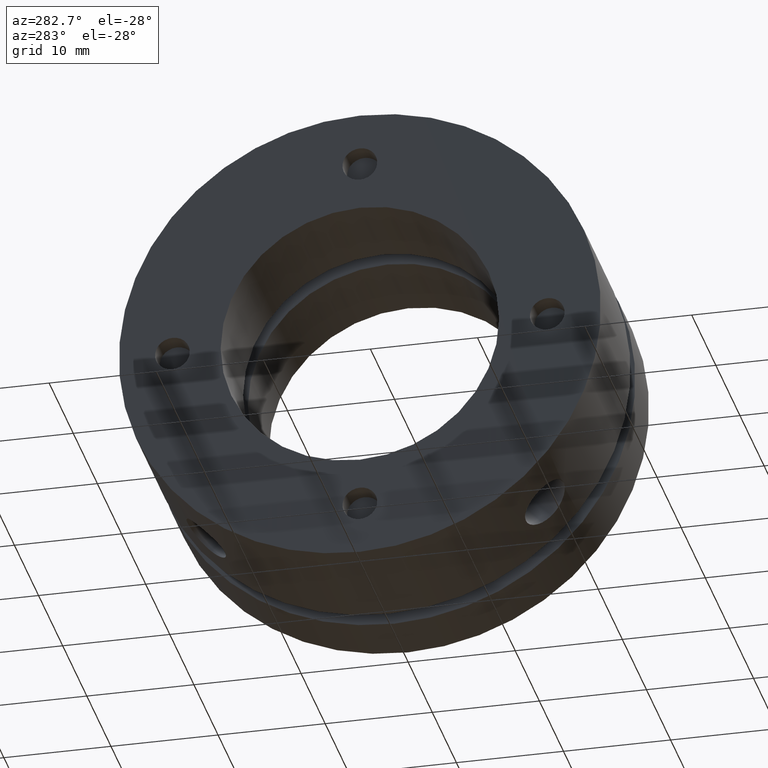
[diagram: clean part render]
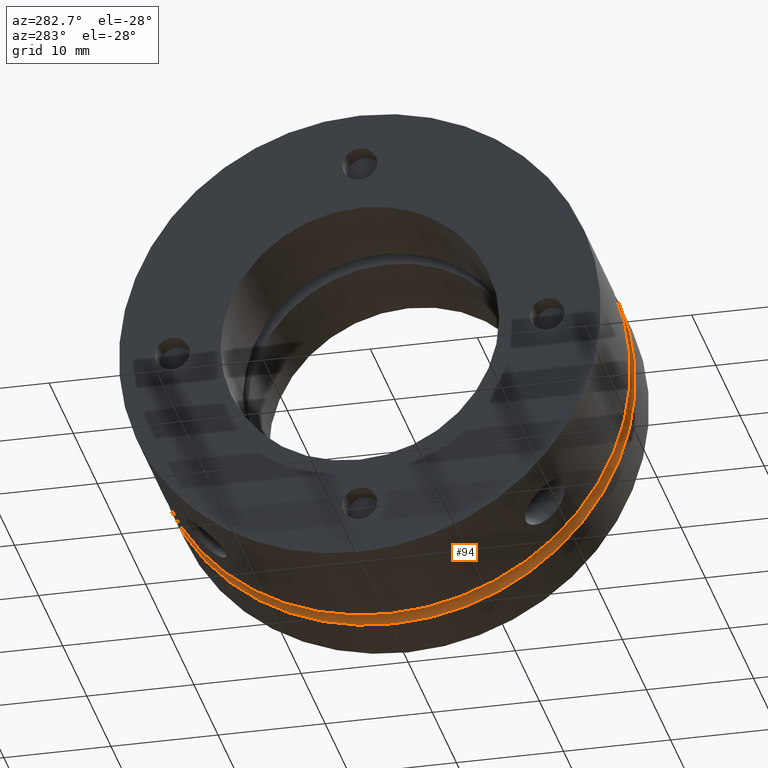
[diagram: same view with one face highlighted and labeled with its STEP entity id]
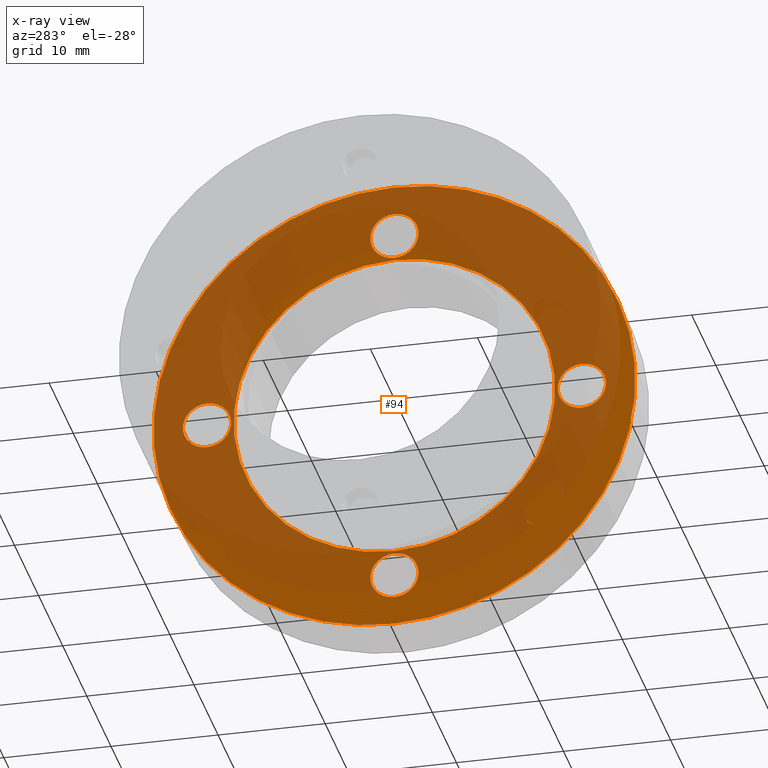
[diagram: x-ray of the same camera — body ghosted, the highlighted face saturated]
A machine part, auxiliary view. The second image highlights one B-rep face of the part: STEP entity #94.
The next image is the same camera in x-ray: the body ghosted, the highlighted face saturated — about 76% of this face is hidden behind the body in this view.
In plain terms, the highlighted planar face has unit normal (1, 0, 0).
Its self-contained STEP definition (entity closure, byte-faithful):
#94 = ADVANCED_FACE ( 'NONE', ( #2528, #2532, #2529, #2531, #2530, #2533 ), #400, .F. ) ;
#396 = DIRECTION ( 'NONE',  ( 1.000000000000000000, -0.0000000000000000000, 0.0000000000000000000 ) ) ;
#400 = PLANE ( 'NONE',  #982 ) ;
#401 = CARTESIAN_POINT ( 'NONE',  ( 14.29999999999999900, 18.75000000000000000, 0.0000000000000000000 ) ) ;
#403 = DIRECTION ( 'NONE',  ( 0.0000000000000000000, 0.0000000000000000000, -1.000000000000000000 ) ) ;
#510 = CARTESIAN_POINT ( 'NONE',  ( 14.29999999999999900, 1.836970198721029600E-015, -15.00000000000000000 ) ) ;
#524 = CARTESIAN_POINT ( 'NONE',  ( 14.29999999999999900, 0.0000000000000000000, 15.00000000000000000 ) ) ;
#544 = CARTESIAN_POINT ( 'NONE',  ( 14.29999999999999900, -17.50000000000000400, 2.250000000000001300 ) ) ;
#547 = CARTESIAN_POINT ( 'NONE',  ( 14.29999999999999900, 17.50000000000000400, -2.250000000000003100 ) ) ;
#548 = CARTESIAN_POINT ( 'NONE',  ( 14.29999999999999900, -1.867586470191845300E-015, -15.25000000000000500 ) ) ;
#550 = CARTESIAN_POINT ( 'NONE',  ( 14.29999999999999900, -2.143131999999999800E-015, -19.75000000000000400 ) ) ;
#553 = CARTESIAN_POINT ( 'NONE',  ( 14.29999999999999900, -17.50000000000000400, -2.249999999999999600 ) ) ;
#556 = CARTESIAN_POINT ( 'NONE',  ( 14.29999999999999900, 2.755455298081546700E-016, 19.75000000000000400 ) ) ;
#557 = CARTESIAN_POINT ( 'NONE',  ( 14.29999999999999900, 0.0000000000000000000, 15.25000000000000500 ) ) ;
#559 = CARTESIAN_POINT ( 'NONE',  ( 14.29999999999999900, -17.50000000000000400, 1.071565999999999900E-015 ) ) ;
#560 = DIRECTION ( 'NONE',  ( -1.000000000000000000, -0.0000000000000000000, -0.0000000000000000000 ) ) ;
#561 = DIRECTION ( 'NONE',  ( 0.0000000000000000000, 0.0000000000000000000, -1.000000000000000000 ) ) ;
#568 = CARTESIAN_POINT ( 'NONE',  ( 14.29999999999999900, 0.0000000000000000000, 0.0000000000000000000 ) ) ;
#569 = DIRECTION ( 'NONE',  ( -1.000000000000000000, 0.0000000000000000000, 0.0000000000000000000 ) ) ;
#570 = DIRECTION ( 'NONE',  ( 0.0000000000000000000, 0.0000000000000000000, 1.000000000000000000 ) ) ;
#577 = CARTESIAN_POINT ( 'NONE',  ( 14.29999999999999900, 0.0000000000000000000, 17.50000000000000400 ) ) ;
#578 = DIRECTION ( 'NONE',  ( -1.000000000000000000, -0.0000000000000000000, -0.0000000000000000000 ) ) ;
#579 = DIRECTION ( 'NONE',  ( 0.0000000000000000000, 0.0000000000000000000, -1.000000000000000000 ) ) ;
#734 = EDGE_LOOP ( 'NONE', ( #2215, #2216 ) ) ;
#982 = AXIS2_PLACEMENT_3D ( 'NONE', #401, #396, #403 ) ;
#985 = AXIS2_PLACEMENT_3D ( 'NONE', #559, #560, #561 ) ;
#992 = AXIS2_PLACEMENT_3D ( 'NONE', #568, #569, #570 ) ;
#995 = AXIS2_PLACEMENT_3D ( 'NONE', #577, #578, #579 ) ;
#1012 = AXIS2_PLACEMENT_3D ( 'NONE', #1034, #1035, #1036 ) ;
#1034 = CARTESIAN_POINT ( 'NONE',  ( 14.29999999999999900, -2.143131999999999800E-015, -17.50000000000000400 ) ) ;
#1035 = DIRECTION ( 'NONE',  ( -1.000000000000000000, -0.0000000000000000000, -0.0000000000000000000 ) ) ;
#1036 = DIRECTION ( 'NONE',  ( 0.0000000000000000000, 0.0000000000000000000, -1.000000000000000000 ) ) ;
#1054 = CARTESIAN_POINT ( 'NONE',  ( 14.29999999999999900, 17.50000000000000400, -3.214698000000000300E-015 ) ) ;
#1055 = DIRECTION ( 'NONE',  ( -1.000000000000000000, -0.0000000000000000000, -0.0000000000000000000 ) ) ;
#1056 = DIRECTION ( 'NONE',  ( 0.0000000000000000000, 0.0000000000000000000, -1.000000000000000000 ) ) ;
#1116 = CARTESIAN_POINT ( 'NONE',  ( 14.29999999999999900, 0.0000000000000000000, 0.0000000000000000000 ) ) ;
#1117 = DIRECTION ( 'NONE',  ( 1.000000000000000000, 0.0000000000000000000, 0.0000000000000000000 ) ) ;
#1118 = DIRECTION ( 'NONE',  ( 0.0000000000000000000, 0.0000000000000000000, -1.000000000000000000 ) ) ;
#1673 = CARTESIAN_POINT ( 'NONE',  ( 14.29999999999999900, 0.0000000000000000000, 0.0000000000000000000 ) ) ;
#1674 = DIRECTION ( 'NONE',  ( 1.000000000000000000, 0.0000000000000000000, 0.0000000000000000000 ) ) ;
#1675 = DIRECTION ( 'NONE',  ( 0.0000000000000000000, 0.0000000000000000000, -1.000000000000000000 ) ) ;
#1720 = CARTESIAN_POINT ( 'NONE',  ( 14.29999999999999900, 0.0000000000000000000, 0.0000000000000000000 ) ) ;
#1721 = DIRECTION ( 'NONE',  ( -1.000000000000000000, 0.0000000000000000000, 0.0000000000000000000 ) ) ;
#1722 = DIRECTION ( 'NONE',  ( 0.0000000000000000000, 0.0000000000000000000, 1.000000000000000000 ) ) ;
#1739 = CARTESIAN_POINT ( 'NONE',  ( 14.29999999999999900, 0.0000000000000000000, 17.50000000000000400 ) ) ;
#1740 = DIRECTION ( 'NONE',  ( -1.000000000000000000, -0.0000000000000000000, -0.0000000000000000000 ) ) ;
#1741 = DIRECTION ( 'NONE',  ( 0.0000000000000000000, 0.0000000000000000000, -1.000000000000000000 ) ) ;
#1746 = CARTESIAN_POINT ( 'NONE',  ( 14.29999999999999900, -17.50000000000000400, 1.071565999999999900E-015 ) ) ;
#1747 = DIRECTION ( 'NONE',  ( -1.000000000000000000, -0.0000000000000000000, -0.0000000000000000000 ) ) ;
#1748 = DIRECTION ( 'NONE',  ( 0.0000000000000000000, 0.0000000000000000000, -1.000000000000000000 ) ) ;
#1768 = CARTESIAN_POINT ( 'NONE',  ( 14.29999999999999900, -2.143131999999999800E-015, -17.50000000000000400 ) ) ;
#1769 = DIRECTION ( 'NONE',  ( -1.000000000000000000, -0.0000000000000000000, -0.0000000000000000000 ) ) ;
#1770 = DIRECTION ( 'NONE',  ( 0.0000000000000000000, 0.0000000000000000000, -1.000000000000000000 ) ) ;
#1785 = CARTESIAN_POINT ( 'NONE',  ( 14.29999999999999900, 17.50000000000000400, -3.214698000000000300E-015 ) ) ;
#1786 = DIRECTION ( 'NONE',  ( -1.000000000000000000, -0.0000000000000000000, -0.0000000000000000000 ) ) ;
#1787 = DIRECTION ( 'NONE',  ( 0.0000000000000000000, 0.0000000000000000000, -1.000000000000000000 ) ) ;
#1796 = CARTESIAN_POINT ( 'NONE',  ( 14.29999999999999900, 2.755455298081544800E-015, 22.50000000000000000 ) ) ;
#1801 = CARTESIAN_POINT ( 'NONE',  ( 14.29999999999999900, 0.0000000000000000000, -22.50000000000000000 ) ) ;
#1802 = CARTESIAN_POINT ( 'NONE',  ( 14.29999999999999900, 17.50000000000000400, 2.249999999999997300 ) ) ;
#1949 = EDGE_LOOP ( 'NONE', ( #2225, #2226 ) ) ;
#1956 = EDGE_LOOP ( 'NONE', ( #2223, #2224 ) ) ;
#1963 = EDGE_LOOP ( 'NONE', ( #2217, #2218 ) ) ;
#1968 = EDGE_LOOP ( 'NONE', ( #2219, #2220 ) ) ;
#1972 = EDGE_LOOP ( 'NONE', ( #2221, #2222 ) ) ;
#2215 = ORIENTED_EDGE ( 'NONE', *, *, #3507, .F. ) ;
#2216 = ORIENTED_EDGE ( 'NONE', *, *, #3315, .F. ) ;
#2217 = ORIENTED_EDGE ( 'NONE', *, *, #3514, .F. ) ;
#2218 = ORIENTED_EDGE ( 'NONE', *, *, #3318, .F. ) ;
#2219 = ORIENTED_EDGE ( 'NONE', *, *, #3517, .F. ) ;
#2220 = ORIENTED_EDGE ( 'NONE', *, *, #3312, .F. ) ;
#2221 = ORIENTED_EDGE ( 'NONE', *, *, #3526, .F. ) ;
#2222 = ORIENTED_EDGE ( 'NONE', *, *, #3335, .F. ) ;
#2223 = ORIENTED_EDGE ( 'NONE', *, *, #3533, .F. ) ;
#2224 = ORIENTED_EDGE ( 'NONE', *, *, #3341, .F. ) ;
#2225 = ORIENTED_EDGE ( 'NONE', *, *, #3488, .F. ) ;
#2226 = ORIENTED_EDGE ( 'NONE', *, *, #3364, .F. ) ;
#2528 = FACE_BOUND ( 'NONE', #734, .T. ) ;
#2529 = FACE_BOUND ( 'NONE', #1968, .T. ) ;
#2530 = FACE_BOUND ( 'NONE', #1956, .T. ) ;
#2531 = FACE_BOUND ( 'NONE', #1972, .T. ) ;
#2532 = FACE_BOUND ( 'NONE', #1963, .T. ) ;
#2533 = FACE_OUTER_BOUND ( 'NONE', #1949, .T. ) ;
#2556 = CIRCLE ( 'NONE', #995, 2.250000000000000400 ) ;
#2558 = CIRCLE ( 'NONE', #992, 15.00000000000000000 ) ;
#2559 = CIRCLE ( 'NONE', #985, 2.250000000000000400 ) ;
#2573 = CIRCLE ( 'NONE', #1012, 2.249999999999998700 ) ;
#2579 = CIRCLE ( 'NONE', #2638, 2.250000000000000400 ) ;
#2606 = CIRCLE ( 'NONE', #2656, 22.50000000000000000 ) ;
#2638 = AXIS2_PLACEMENT_3D ( 'NONE', #1054, #1055, #1056 ) ;
#2656 = AXIS2_PLACEMENT_3D ( 'NONE', #1116, #1117, #1118 ) ;
#2708 = AXIS2_PLACEMENT_3D ( 'NONE', #1673, #1674, #1675 ) ;
#2717 = AXIS2_PLACEMENT_3D ( 'NONE', #1720, #1721, #1722 ) ;
#2721 = AXIS2_PLACEMENT_3D ( 'NONE', #1739, #1740, #1741 ) ;
#2722 = AXIS2_PLACEMENT_3D ( 'NONE', #1746, #1747, #1748 ) ;
#2725 = AXIS2_PLACEMENT_3D ( 'NONE', #1768, #1769, #1770 ) ;
#2728 = AXIS2_PLACEMENT_3D ( 'NONE', #1785, #1786, #1787 ) ;
#2992 = VERTEX_POINT ( 'NONE', #510 ) ;
#2994 = CIRCLE ( 'NONE', #2708, 22.50000000000000000 ) ;
#3032 = CIRCLE ( 'NONE', #2717, 15.00000000000000000 ) ;
#3038 = VERTEX_POINT ( 'NONE', #524 ) ;
#3043 = CIRCLE ( 'NONE', #2721, 2.250000000000000400 ) ;
#3049 = CIRCLE ( 'NONE', #2722, 2.250000000000000400 ) ;
#3066 = CIRCLE ( 'NONE', #2725, 2.249999999999998700 ) ;
#3076 = CIRCLE ( 'NONE', #2728, 2.250000000000000400 ) ;
#3221 = VERTEX_POINT ( 'NONE', #1802 ) ;
#3236 = VERTEX_POINT ( 'NONE', #1801 ) ;
#3298 = VERTEX_POINT ( 'NONE', #547 ) ;
#3299 = VERTEX_POINT ( 'NONE', #548 ) ;
#3302 = VERTEX_POINT ( 'NONE', #550 ) ;
#3303 = VERTEX_POINT ( 'NONE', #544 ) ;
#3306 = VERTEX_POINT ( 'NONE', #553 ) ;
#3309 = VERTEX_POINT ( 'NONE', #556 ) ;
#3310 = VERTEX_POINT ( 'NONE', #557 ) ;
#3312 = EDGE_CURVE ( 'NONE', #3303, #3306, #2559, .T. ) ;
#3315 = EDGE_CURVE ( 'NONE', #2992, #3038, #2558, .T. ) ;
#3318 = EDGE_CURVE ( 'NONE', #3309, #3310, #2556, .T. ) ;
#3335 = EDGE_CURVE ( 'NONE', #3299, #3302, #2573, .T. ) ;
#3341 = EDGE_CURVE ( 'NONE', #3221, #3298, #2579, .T. ) ;
#3364 = EDGE_CURVE ( 'NONE', #3557, #3236, #2606, .T. ) ;
#3488 = EDGE_CURVE ( 'NONE', #3236, #3557, #2994, .T. ) ;
#3507 = EDGE_CURVE ( 'NONE', #3038, #2992, #3032, .T. ) ;
#3514 = EDGE_CURVE ( 'NONE', #3310, #3309, #3043, .T. ) ;
#3517 = EDGE_CURVE ( 'NONE', #3306, #3303, #3049, .T. ) ;
#3526 = EDGE_CURVE ( 'NONE', #3302, #3299, #3066, .T. ) ;
#3533 = EDGE_CURVE ( 'NONE', #3298, #3221, #3076, .T. ) ;
#3557 = VERTEX_POINT ( 'NONE', #1796 ) ;